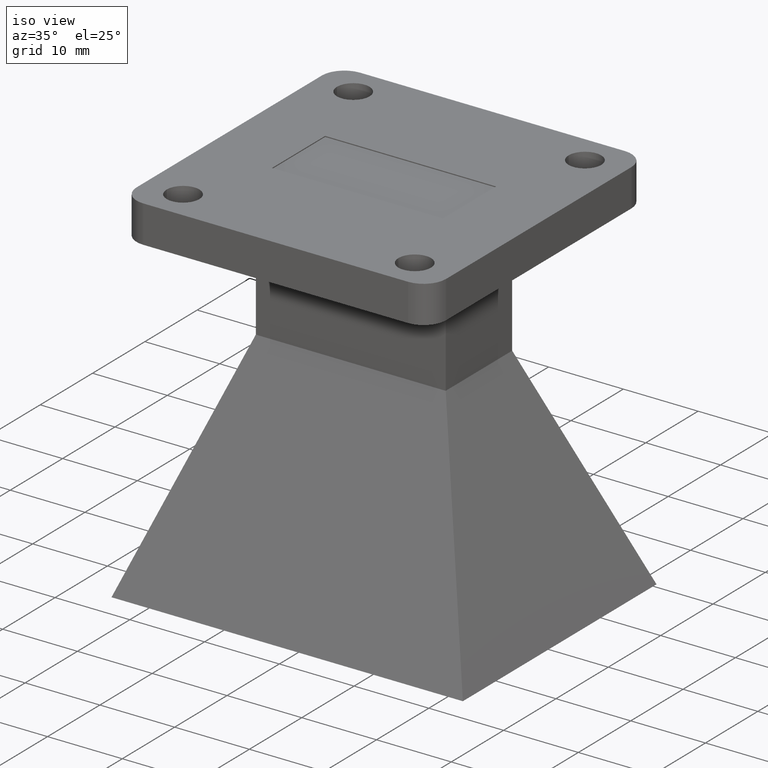
[diagram: clean part render]
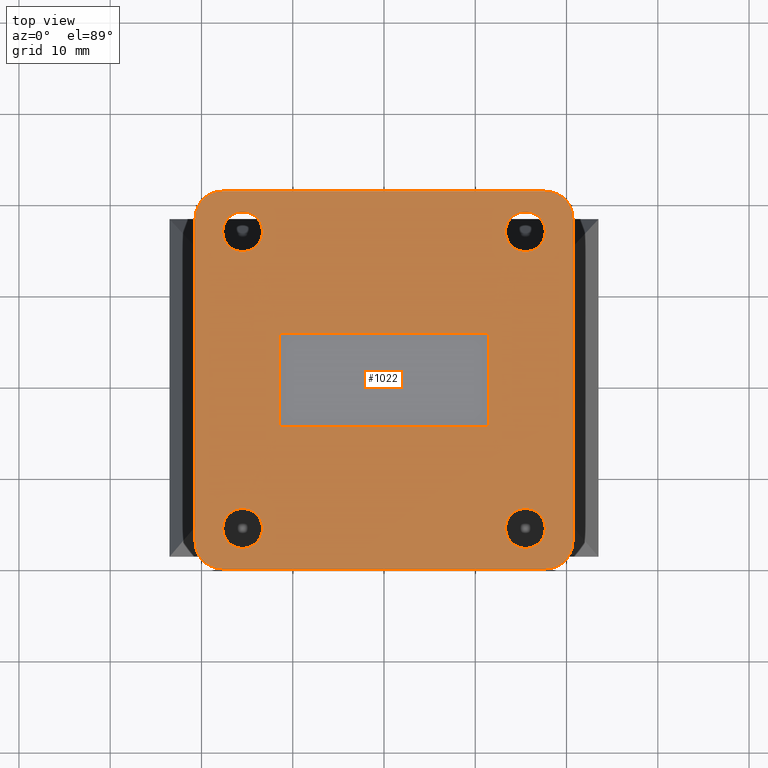
[diagram: tour spotlight — one face highlighted and labeled with its STEP entity id]
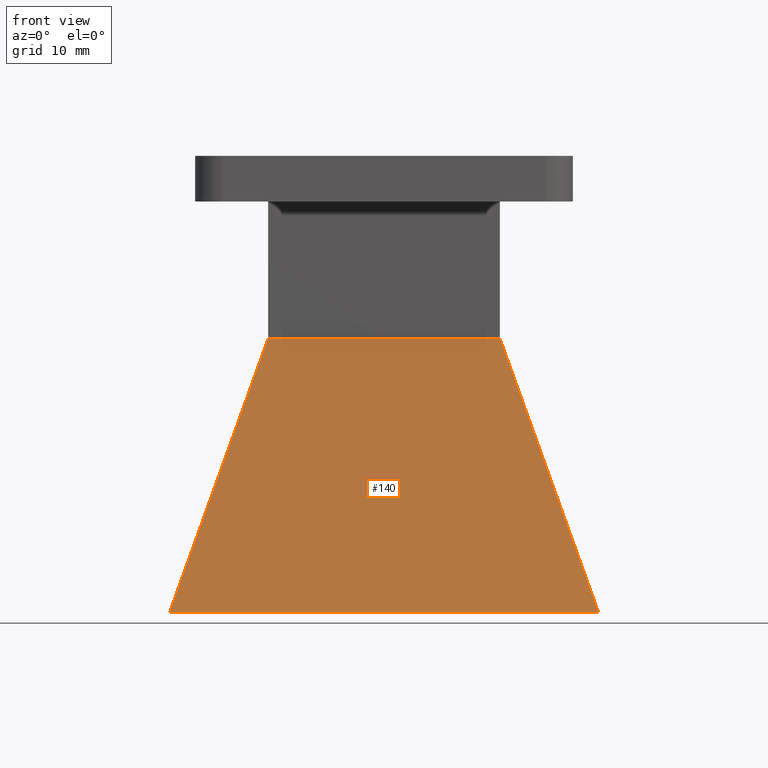
[diagram: tour spotlight — one face highlighted and labeled with its STEP entity id]
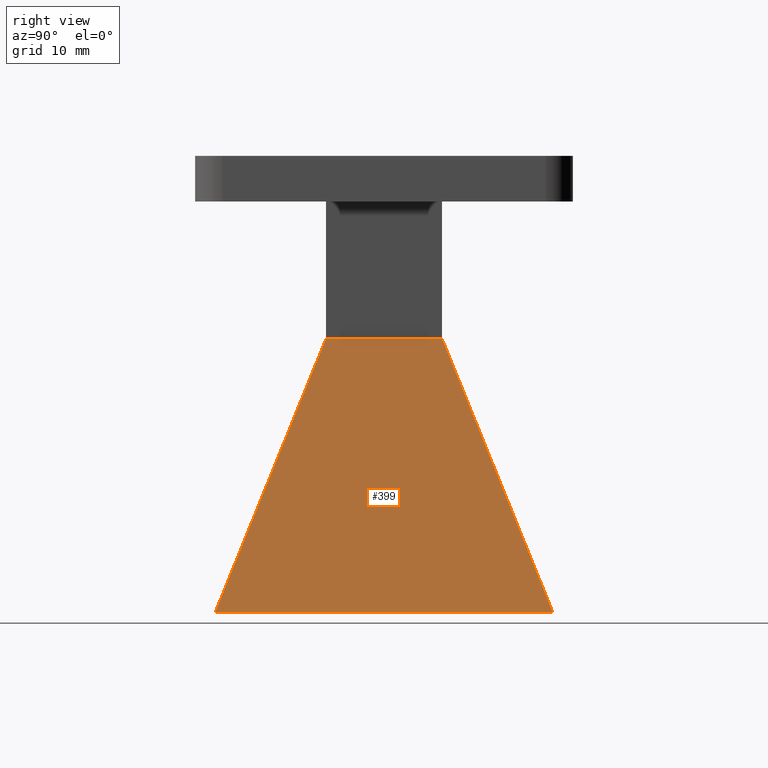
[diagram: tour spotlight — one face highlighted and labeled with its STEP entity id]
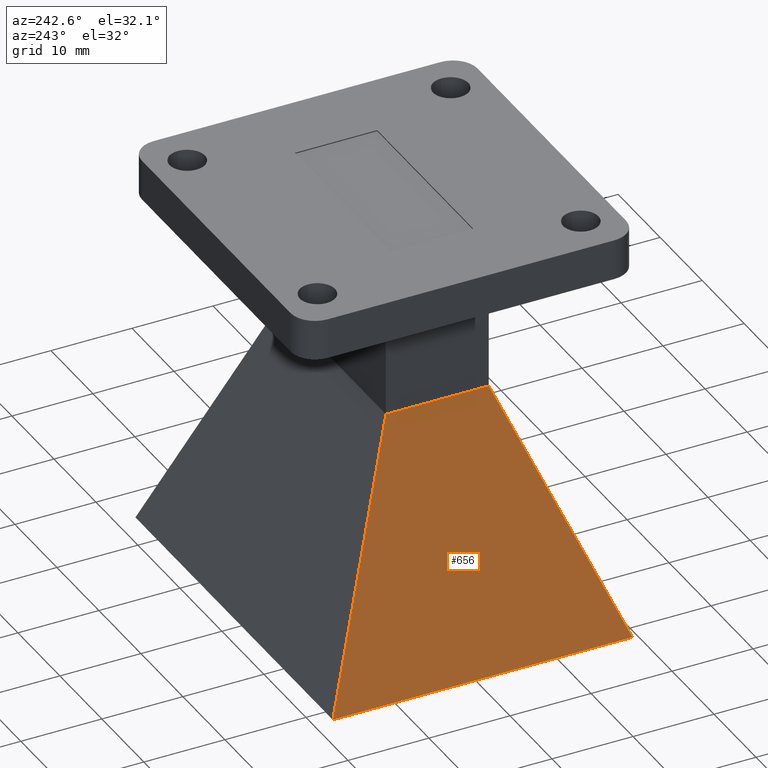
[diagram: tour spotlight — one face highlighted and labeled with its STEP entity id]
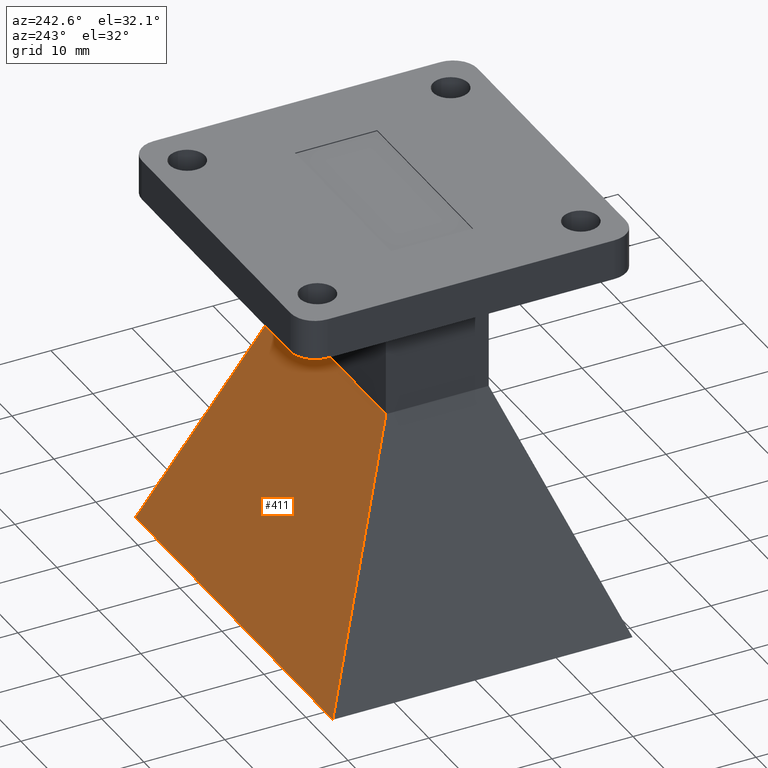
[diagram: tour spotlight — one face highlighted and labeled with its STEP entity id]
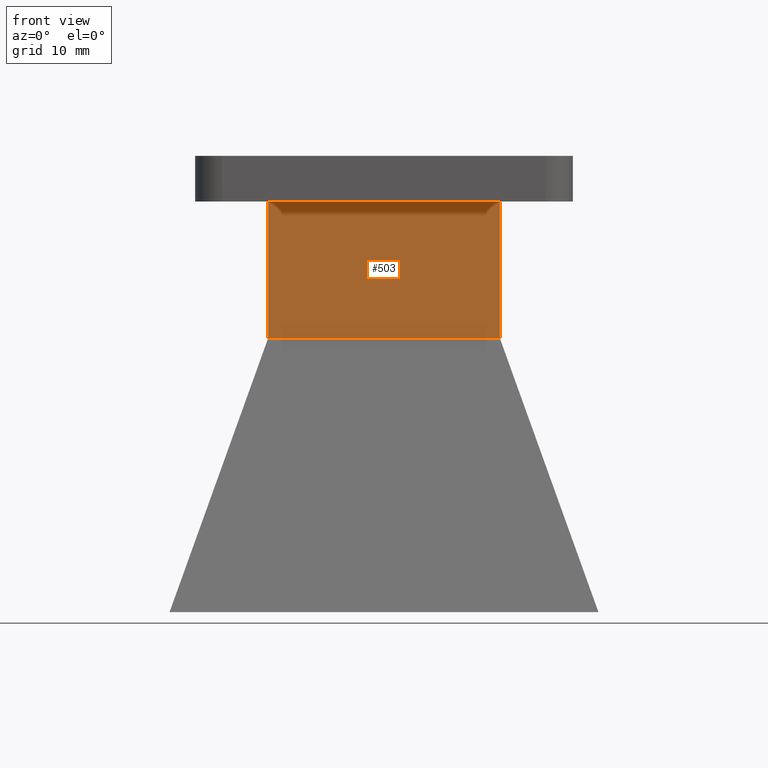
[diagram: tour spotlight — one face highlighted and labeled with its STEP entity id]
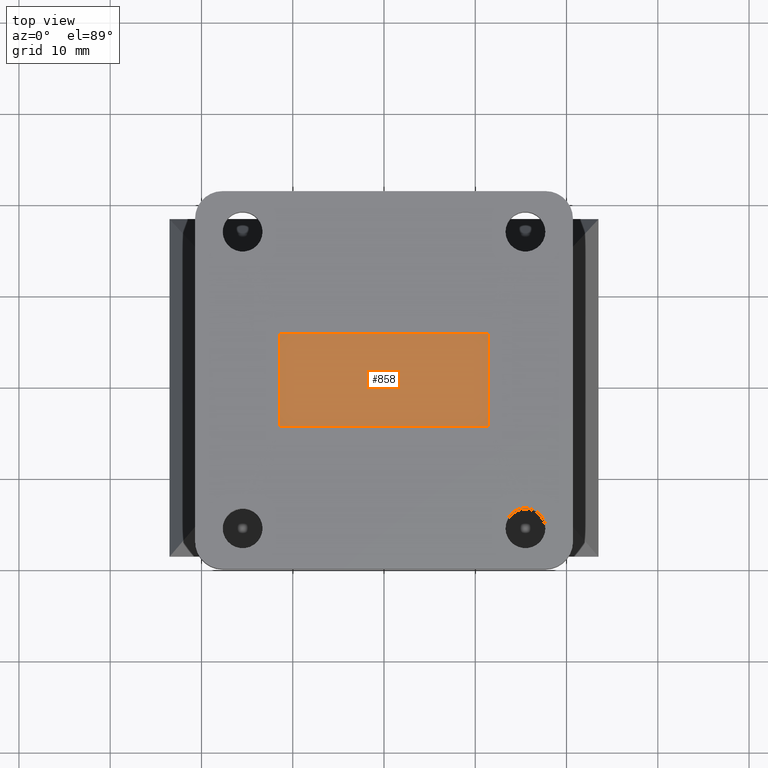
[diagram: tour spotlight — one face highlighted and labeled with its STEP entity id]
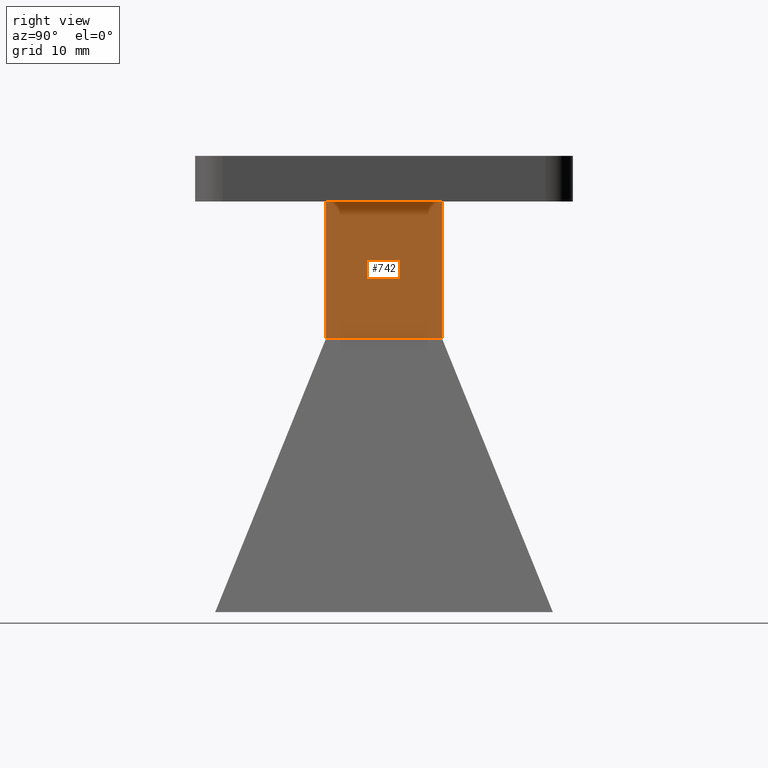
[diagram: tour spotlight — one face highlighted and labeled with its STEP entity id]
A machine part: a face-by-face anatomy tour. The part has 38 B-rep faces; the first image is the clean iso view, then the 8 largest visible faces are spotlighted one at a time (largest first), each with its STEP entity span.

Face 1 — top view, entity #1022. In plain terms, the highlighted planar face has unit normal (0, 0, 1).
Definition (entity closure, byte-faithful):
#3 = AXIS2_PLACEMENT_3D ( 'NONE', #416, #1051, #1064 ) ;
#8 = DIRECTION ( 'NONE',  ( -1.000000000000000000, -0.0000000000000000000, -0.0000000000000000000 ) ) ;
#9 = DIRECTION ( 'NONE',  ( 1.000000000000000000, 0.0000000000000000000, 0.0000000000000000000 ) ) ;
#13 = LINE ( 'NONE', #368, #430 ) ;
#22 = CARTESIAN_POINT ( 'NONE',  ( -0.6968897637795273800, -0.8149999999999999500, 0.0000000000000000000 ) ) ;
#27 = CIRCLE ( 'NONE', #929, 0.1181102362204724100 ) ;
#32 = DIRECTION ( 'NONE',  ( 1.000000000000000000, 0.0000000000000000000, 0.0000000000000000000 ) ) ;
#33 = ORIENTED_EDGE ( 'NONE', *, *, #1110, .T. ) ;
#34 = PLANE ( 'NONE',  #1174 ) ;
#41 = AXIS2_PLACEMENT_3D ( 'NONE', #105, #551, #804 ) ;
#49 = VERTEX_POINT ( 'NONE', #359 ) ;
#54 = DIRECTION ( 'NONE',  ( 1.000000000000000000, 0.0000000000000000000, 0.0000000000000000000 ) ) ;
#64 = DIRECTION ( 'NONE',  ( -0.0000000000000000000, -0.0000000000000000000, 1.000000000000000000 ) ) ;
#66 = CARTESIAN_POINT ( 'NONE',  ( 0.8150000000000000600, 0.6968897637795274900, 0.0000000000000000000 ) ) ;
#69 = DIRECTION ( 'NONE',  ( 0.0000000000000000000, 1.000000000000000000, 0.0000000000000000000 ) ) ;
#72 = LINE ( 'NONE', #990, #1019 ) ;
#74 = EDGE_CURVE ( 'NONE', #924, #1143, #27, .T. ) ;
#79 = DIRECTION ( 'NONE',  ( -1.000000000000000000, 0.0000000000000000000, 0.0000000000000000000 ) ) ;
#82 = EDGE_CURVE ( 'NONE', #261, #421, #13, .T. ) ;
#92 = DIRECTION ( 'NONE',  ( 1.000000000000000000, 0.0000000000000000000, 0.0000000000000000000 ) ) ;
#104 = AXIS2_PLACEMENT_3D ( 'NONE', #1134, #124, #32 ) ;
#105 = CARTESIAN_POINT ( 'NONE',  ( 0.6100000000000002100, 0.6400000000000002400, -1.016334378612393900E-017 ) ) ;
#124 = DIRECTION ( 'NONE',  ( -0.0000000000000000000, -0.0000000000000000000, 1.000000000000000000 ) ) ;
#126 = CARTESIAN_POINT ( 'NONE',  ( 0.5240600000000001900, -0.6399999999999996800, -1.016334378612393900E-017 ) ) ;
#127 = ORIENTED_EDGE ( 'NONE', *, *, #82, .F. ) ;
#129 = ORIENTED_EDGE ( 'NONE', *, *, #74, .T. ) ;
#133 = AXIS2_PLACEMENT_3D ( 'NONE', #800, #1076, #92 ) ;
#139 = EDGE_CURVE ( 'NONE', #421, #1021, #72, .T. ) ;
#141 = EDGE_LOOP ( 'NONE', ( #830, #127, #238, #1023 ) ) ;
#142 = ORIENTED_EDGE ( 'NONE', *, *, #696, .T. ) ;
#144 = VERTEX_POINT ( 'NONE', #1100 ) ;
#152 = AXIS2_PLACEMENT_3D ( 'NONE', #1172, #288, #9 ) ;
#169 = CARTESIAN_POINT ( 'NONE',  ( 0.6959400000000002300, -0.6399999999999996800, -1.016334378612393900E-017 ) ) ;
#172 = DIRECTION ( 'NONE',  ( 0.0000000000000000000, 1.000000000000000000, 0.0000000000000000000 ) ) ;
#192 = ORIENTED_EDGE ( 'NONE', *, *, #314, .F. ) ;
#196 = CARTESIAN_POINT ( 'NONE',  ( 0.6968897637795276000, 0.6968897637795274900, 0.0000000000000000000 ) ) ;
#211 = AXIS2_PLACEMENT_3D ( 'NONE', #196, #1115, #564 ) ;
#231 = EDGE_CURVE ( 'NONE', #591, #1101, #1065, .T. ) ;
#233 = LINE ( 'NONE', #22, #584 ) ;
#237 = CARTESIAN_POINT ( 'NONE',  ( -0.6099999999999997600, 0.6400000000000001200, -1.016334378612393900E-017 ) ) ;
#238 = ORIENTED_EDGE ( 'NONE', *, *, #850, .F. ) ;
#252 = VERTEX_POINT ( 'NONE', #644 ) ;
#261 = VERTEX_POINT ( 'NONE', #1012 ) ;
#262 = VERTEX_POINT ( 'NONE', #908 ) ;
#266 = EDGE_CURVE ( 'NONE', #431, #252, #233, .T. ) ;
#279 = ORIENTED_EDGE ( 'NONE', *, *, #544, .T. ) ;
#288 = DIRECTION ( 'NONE',  ( -0.0000000000000000000, -0.0000000000000000000, 1.000000000000000000 ) ) ;
#306 = ORIENTED_EDGE ( 'NONE', *, *, #231, .T. ) ;
#313 = CIRCLE ( 'NONE', #1008, 0.08594000000000001600 ) ;
#314 = EDGE_CURVE ( 'NONE', #458, #790, #972, .T. ) ;
#315 = FACE_OUTER_BOUND ( 'NONE', #639, .T. ) ;
#316 = CIRCLE ( 'NONE', #1073, 0.08594000000000001600 ) ;
#328 = CARTESIAN_POINT ( 'NONE',  ( -0.6968897637795273800, -0.8149999999999999500, 0.0000000000000000000 ) ) ;
#332 = CIRCLE ( 'NONE', #152, 0.08594000000000001600 ) ;
#340 = CARTESIAN_POINT ( 'NONE',  ( 0.6100000000000002100, -0.6399999999999996800, -1.016334378612393900E-017 ) ) ;
#344 = EDGE_CURVE ( 'NONE', #1143, #602, #855, .T. ) ;
#346 = LINE ( 'NONE', #405, #552 ) ;
#359 = CARTESIAN_POINT ( 'NONE',  ( 0.6959400000000002300, 0.6400000000000002400, -1.016334378612393900E-017 ) ) ;
#368 = CARTESIAN_POINT ( 'NONE',  ( -0.4499999999999999000, -0.2000000000000000100, 0.0000000000000000000 ) ) ;
#373 = VECTOR ( 'NONE', #69, 39.37007874015748100 ) ;
#386 = DIRECTION ( 'NONE',  ( 1.000000000000000000, 0.0000000000000000000, 0.0000000000000000000 ) ) ;
#395 = CARTESIAN_POINT ( 'NONE',  ( -0.5240599999999997500, 0.6400000000000001200, -1.016334378612393900E-017 ) ) ;
#405 = CARTESIAN_POINT ( 'NONE',  ( -0.4499999999999999000, 0.2000000000000000100, 0.0000000000000000000 ) ) ;
#407 = VERTEX_POINT ( 'NONE', #576 ) ;
#416 = CARTESIAN_POINT ( 'NONE',  ( -0.6099999999999997600, -0.6399999999999999000, -1.016334378612393900E-017 ) ) ;
#417 = EDGE_CURVE ( 'NONE', #907, #144, #1096, .T. ) ;
#421 = VERTEX_POINT ( 'NONE', #860 ) ;
#422 = CARTESIAN_POINT ( 'NONE',  ( -0.8149999999999997200, 0.6968897637795274900, 0.0000000000000000000 ) ) ;
#423 = DIRECTION ( 'NONE',  ( 1.000000000000000000, 0.0000000000000000000, 0.0000000000000000000 ) ) ;
#427 = EDGE_CURVE ( 'NONE', #790, #458, #1163, .T. ) ;
#430 = VECTOR ( 'NONE', #1089, 39.37007874015748100 ) ;
#431 = VERTEX_POINT ( 'NONE', #328 ) ;
#438 = FACE_BOUND ( 'NONE', #693, .T. ) ;
#440 = CIRCLE ( 'NONE', #1014, 0.08594000000000001600 ) ;
#458 = VERTEX_POINT ( 'NONE', #1047 ) ;
#465 = LINE ( 'NONE', #1088, #713 ) ;
#467 = EDGE_CURVE ( 'NONE', #624, #956, #316, .T. ) ;
#472 = ORIENTED_EDGE ( 'NONE', *, *, #1142, .T. ) ;
#474 = CARTESIAN_POINT ( 'NONE',  ( -0.6968897637795273800, 0.8149999999999999500, 0.0000000000000000000 ) ) ;
#484 = EDGE_CURVE ( 'NONE', #49, #262, #440, .T. ) ;
#494 = FACE_BOUND ( 'NONE', #715, .T. ) ;
#511 = DIRECTION ( 'NONE',  ( 1.000000000000000000, 0.0000000000000000000, 0.0000000000000000000 ) ) ;
#513 = CARTESIAN_POINT ( 'NONE',  ( 0.6100000000000002100, 0.6400000000000002400, -1.016334378612393900E-017 ) ) ;
#516 = CARTESIAN_POINT ( 'NONE',  ( 0.8150000000000000600, -0.6968897637795274900, 0.0000000000000000000 ) ) ;
#521 = EDGE_LOOP ( 'NONE', ( #1086, #694 ) ) ;
#534 = CARTESIAN_POINT ( 'NONE',  ( -0.6968897637795273800, -0.6968897637795274900, 0.0000000000000000000 ) ) ;
#540 = ORIENTED_EDGE ( 'NONE', *, *, #417, .F. ) ;
#544 = EDGE_CURVE ( 'NONE', #602, #431, #1037, .T. ) ;
#551 = DIRECTION ( 'NONE',  ( -0.0000000000000000000, -0.0000000000000000000, 1.000000000000000000 ) ) ;
#552 = VECTOR ( 'NONE', #583, 39.37007874015748100 ) ;
#556 = ORIENTED_EDGE ( 'NONE', *, *, #657, .F. ) ;
#558 = ORIENTED_EDGE ( 'NONE', *, *, #427, .F. ) ;
#564 = DIRECTION ( 'NONE',  ( -1.000000000000000000, 0.0000000000000000000, 0.0000000000000000000 ) ) ;
#566 = LINE ( 'NONE', #807, #985 ) ;
#576 = CARTESIAN_POINT ( 'NONE',  ( 0.8150000000000000600, -0.6968897637795274900, 0.0000000000000000000 ) ) ;
#583 = DIRECTION ( 'NONE',  ( -1.000000000000000000, -0.0000000000000000000, -0.0000000000000000000 ) ) ;
#584 = VECTOR ( 'NONE', #386, 39.37007874015748100 ) ;
#590 = DIRECTION ( 'NONE',  ( -0.0000000000000000000, -1.000000000000000000, -0.0000000000000000000 ) ) ;
#591 = VERTEX_POINT ( 'NONE', #66 ) ;
#593 = CARTESIAN_POINT ( 'NONE',  ( 0.6968897637795276000, -0.6968897637795274900, 0.0000000000000000000 ) ) ;
#602 = VERTEX_POINT ( 'NONE', #695 ) ;
#608 = FACE_BOUND ( 'NONE', #141, .T. ) ;
#611 = AXIS2_PLACEMENT_3D ( 'NONE', #237, #64, #946 ) ;
#615 = DIRECTION ( 'NONE',  ( -1.000000000000000000, 0.0000000000000000000, 0.0000000000000000000 ) ) ;
#624 = VERTEX_POINT ( 'NONE', #169 ) ;
#634 = DIRECTION ( 'NONE',  ( 0.0000000000000000000, 0.0000000000000000000, 1.000000000000000000 ) ) ;
#639 = EDGE_LOOP ( 'NONE', ( #472, #33, #306, #142, #129, #1156, #279, #708 ) ) ;
#644 = CARTESIAN_POINT ( 'NONE',  ( 0.6968897637795276000, -0.8149999999999999500, 0.0000000000000000000 ) ) ;
#657 = EDGE_CURVE ( 'NONE', #262, #49, #1151, .T. ) ;
#670 = AXIS2_PLACEMENT_3D ( 'NONE', #534, #1160, #615 ) ;
#673 = CARTESIAN_POINT ( 'NONE',  ( 0.4500000000000000700, 0.2000000000000000400, 0.0000000000000000000 ) ) ;
#676 = DIRECTION ( 'NONE',  ( 0.0000000000000000000, 0.0000000000000000000, 1.000000000000000000 ) ) ;
#692 = CARTESIAN_POINT ( 'NONE',  ( 0.6100000000000002100, -0.6399999999999996800, -1.016334378612393900E-017 ) ) ;
#693 = EDGE_LOOP ( 'NONE', ( #761, #556 ) ) ;
#694 = ORIENTED_EDGE ( 'NONE', *, *, #1133, .F. ) ;
#695 = CARTESIAN_POINT ( 'NONE',  ( -0.8149999999999997200, -0.6968897637795274900, 0.0000000000000000000 ) ) ;
#696 = EDGE_CURVE ( 'NONE', #1101, #924, #566, .T. ) ;
#708 = ORIENTED_EDGE ( 'NONE', *, *, #266, .T. ) ;
#712 = EDGE_CURVE ( 'NONE', #144, #907, #332, .T. ) ;
#713 = VECTOR ( 'NONE', #826, 39.37007874015748100 ) ;
#715 = EDGE_LOOP ( 'NONE', ( #192, #558 ) ) ;
#761 = ORIENTED_EDGE ( 'NONE', *, *, #484, .F. ) ;
#763 = DIRECTION ( 'NONE',  ( 1.000000000000000000, 0.0000000000000000000, -0.0000000000000000000 ) ) ;
#790 = VERTEX_POINT ( 'NONE', #1004 ) ;
#800 = CARTESIAN_POINT ( 'NONE',  ( 0.6968897637795276000, -0.6968897637795274900, 0.0000000000000000000 ) ) ;
#804 = DIRECTION ( 'NONE',  ( 1.000000000000000000, 0.0000000000000000000, 0.0000000000000000000 ) ) ;
#807 = CARTESIAN_POINT ( 'NONE',  ( -0.6968897637795273800, 0.8149999999999999500, 0.0000000000000000000 ) ) ;
#826 = DIRECTION ( 'NONE',  ( -0.0000000000000000000, -1.000000000000000000, -0.0000000000000000000 ) ) ;
#830 = ORIENTED_EDGE ( 'NONE', *, *, #139, .F. ) ;
#850 = EDGE_CURVE ( 'NONE', #910, #261, #465, .T. ) ;
#855 = LINE ( 'NONE', #918, #1124 ) ;
#860 = CARTESIAN_POINT ( 'NONE',  ( 0.4500000000000000700, -0.2000000000000000100, 0.0000000000000000000 ) ) ;
#893 = CARTESIAN_POINT ( 'NONE',  ( -0.6968897637795273800, 0.6968897637795274900, 0.0000000000000000000 ) ) ;
#894 = FACE_BOUND ( 'NONE', #521, .T. ) ;
#907 = VERTEX_POINT ( 'NONE', #395 ) ;
#908 = CARTESIAN_POINT ( 'NONE',  ( 0.5240600000000001900, 0.6400000000000002400, -1.016334378612393900E-017 ) ) ;
#910 = VERTEX_POINT ( 'NONE', #922 ) ;
#915 = LINE ( 'NONE', #516, #373 ) ;
#918 = CARTESIAN_POINT ( 'NONE',  ( -0.8149999999999997200, -0.6968897637795274900, 0.0000000000000000000 ) ) ;
#922 = CARTESIAN_POINT ( 'NONE',  ( -0.4499999999999999000, 0.2000000000000000100, 0.0000000000000000000 ) ) ;
#924 = VERTEX_POINT ( 'NONE', #474 ) ;
#929 = AXIS2_PLACEMENT_3D ( 'NONE', #893, #634, #79 ) ;
#946 = DIRECTION ( 'NONE',  ( 1.000000000000000000, 0.0000000000000000000, 0.0000000000000000000 ) ) ;
#948 = CARTESIAN_POINT ( 'NONE',  ( 0.6968897637795276000, 0.8149999999999999500, 0.0000000000000000000 ) ) ;
#951 = FACE_BOUND ( 'NONE', #1039, .T. ) ;
#952 = DIRECTION ( 'NONE',  ( -0.0000000000000000000, -0.0000000000000000000, 1.000000000000000000 ) ) ;
#954 = DIRECTION ( 'NONE',  ( -0.0000000000000000000, -0.0000000000000000000, 1.000000000000000000 ) ) ;
#956 = VERTEX_POINT ( 'NONE', #126 ) ;
#972 = CIRCLE ( 'NONE', #104, 0.08594000000000001600 ) ;
#985 = VECTOR ( 'NONE', #8, 39.37007874015748100 ) ;
#990 = CARTESIAN_POINT ( 'NONE',  ( 0.4500000000000000700, -0.2000000000000000100, 0.0000000000000000000 ) ) ;
#1001 = CIRCLE ( 'NONE', #133, 0.1181102362204724100 ) ;
#1004 = CARTESIAN_POINT ( 'NONE',  ( -0.6959399999999997800, -0.6399999999999999000, -1.016334378612393900E-017 ) ) ;
#1008 = AXIS2_PLACEMENT_3D ( 'NONE', #340, #954, #511 ) ;
#1012 = CARTESIAN_POINT ( 'NONE',  ( -0.4499999999999999000, -0.2000000000000000100, 0.0000000000000000000 ) ) ;
#1014 = AXIS2_PLACEMENT_3D ( 'NONE', #513, #952, #423 ) ;
#1019 = VECTOR ( 'NONE', #172, 39.37007874015748100 ) ;
#1021 = VERTEX_POINT ( 'NONE', #673 ) ;
#1022 = ADVANCED_FACE ( 'NONE', ( #951, #438, #494, #894, #608, #315 ), #34, .T. ) ;
#1023 = ORIENTED_EDGE ( 'NONE', *, *, #1033, .F. ) ;
#1033 = EDGE_CURVE ( 'NONE', #1021, #910, #346, .T. ) ;
#1037 = CIRCLE ( 'NONE', #670, 0.1181102362204724100 ) ;
#1039 = EDGE_LOOP ( 'NONE', ( #540, #1043 ) ) ;
#1043 = ORIENTED_EDGE ( 'NONE', *, *, #712, .F. ) ;
#1047 = CARTESIAN_POINT ( 'NONE',  ( -0.5240599999999997500, -0.6399999999999999000, -1.016334378612393900E-017 ) ) ;
#1051 = DIRECTION ( 'NONE',  ( -0.0000000000000000000, -0.0000000000000000000, 1.000000000000000000 ) ) ;
#1057 = DIRECTION ( 'NONE',  ( -0.0000000000000000000, -0.0000000000000000000, 1.000000000000000000 ) ) ;
#1064 = DIRECTION ( 'NONE',  ( 1.000000000000000000, 0.0000000000000000000, 0.0000000000000000000 ) ) ;
#1065 = CIRCLE ( 'NONE', #211, 0.1181102362204724100 ) ;
#1073 = AXIS2_PLACEMENT_3D ( 'NONE', #692, #1057, #54 ) ;
#1076 = DIRECTION ( 'NONE',  ( 0.0000000000000000000, 0.0000000000000000000, 1.000000000000000000 ) ) ;
#1086 = ORIENTED_EDGE ( 'NONE', *, *, #467, .F. ) ;
#1088 = CARTESIAN_POINT ( 'NONE',  ( -0.4499999999999999000, -0.2000000000000000100, 0.0000000000000000000 ) ) ;
#1089 = DIRECTION ( 'NONE',  ( 1.000000000000000000, 0.0000000000000000000, 0.0000000000000000000 ) ) ;
#1096 = CIRCLE ( 'NONE', #611, 0.08594000000000001600 ) ;
#1100 = CARTESIAN_POINT ( 'NONE',  ( -0.6959399999999997800, 0.6400000000000001200, -1.016334378612393900E-017 ) ) ;
#1101 = VERTEX_POINT ( 'NONE', #948 ) ;
#1110 = EDGE_CURVE ( 'NONE', #407, #591, #915, .T. ) ;
#1115 = DIRECTION ( 'NONE',  ( 0.0000000000000000000, 0.0000000000000000000, 1.000000000000000000 ) ) ;
#1124 = VECTOR ( 'NONE', #590, 39.37007874015748100 ) ;
#1133 = EDGE_CURVE ( 'NONE', #956, #624, #313, .T. ) ;
#1134 = CARTESIAN_POINT ( 'NONE',  ( -0.6099999999999997600, -0.6399999999999999000, -1.016334378612393900E-017 ) ) ;
#1142 = EDGE_CURVE ( 'NONE', #252, #407, #1001, .T. ) ;
#1143 = VERTEX_POINT ( 'NONE', #422 ) ;
#1151 = CIRCLE ( 'NONE', #41, 0.08594000000000001600 ) ;
#1156 = ORIENTED_EDGE ( 'NONE', *, *, #344, .T. ) ;
#1160 = DIRECTION ( 'NONE',  ( 0.0000000000000000000, 0.0000000000000000000, 1.000000000000000000 ) ) ;
#1163 = CIRCLE ( 'NONE', #3, 0.08594000000000001600 ) ;
#1172 = CARTESIAN_POINT ( 'NONE',  ( -0.6099999999999997600, 0.6400000000000001200, -1.016334378612393900E-017 ) ) ;
#1174 = AXIS2_PLACEMENT_3D ( 'NONE', #593, #676, #763 ) ;

Face 2 — front view, entity #140. In plain terms, the highlighted planar face has unit normal (-0, 0.9269, -0.3754).
Definition (entity closure, byte-faithful):
#16 = AXIS2_PLACEMENT_3D ( 'NONE', #269, #984, #640 ) ;
#17 = DIRECTION ( 'NONE',  ( 1.000000000000000000, 0.0000000000000000000, 0.0000000000000000000 ) ) ;
#25 = LINE ( 'NONE', #493, #1161 ) ;
#95 = VERTEX_POINT ( 'NONE', #98 ) ;
#98 = CARTESIAN_POINT ( 'NONE',  ( -0.4999999999999998300, -0.2500000000000000600, -0.7874015748031497600 ) ) ;
#140 = ADVANCED_FACE ( 'NONE', ( #507 ), #548, .F. ) ;
#156 = VERTEX_POINT ( 'NONE', #448 ) ;
#167 = EDGE_CURVE ( 'NONE', #1126, #1112, #276, .T. ) ;
#184 = CARTESIAN_POINT ( 'NONE',  ( 0.9251968503937011400, -0.7283464566929134200, -1.968503937007874100 ) ) ;
#190 = EDGE_LOOP ( 'NONE', ( #1080, #921, #861, #865 ) ) ;
#260 = CARTESIAN_POINT ( 'NONE',  ( 0.4999999999999998300, -0.2500000000000000600, -0.7874015748031496500 ) ) ;
#269 = CARTESIAN_POINT ( 'NONE',  ( -8.738450157423253300E-018, 0.05918913923264160900, -0.02397160138921985300 ) ) ;
#276 = LINE ( 'NONE', #184, #786 ) ;
#448 = CARTESIAN_POINT ( 'NONE',  ( 0.5000000000000000000, -0.2500000000000000600, -0.7874015748031497600 ) ) ;
#455 = VECTOR ( 'NONE', #976, 39.37007874015748100 ) ;
#482 = LINE ( 'NONE', #260, #455 ) ;
#493 = CARTESIAN_POINT ( 'NONE',  ( -0.4999999999999998300, -0.2500000000000000600, -0.7874015748031496500 ) ) ;
#507 = FACE_OUTER_BOUND ( 'NONE', #190, .T. ) ;
#548 = PLANE ( 'NONE',  #16 ) ;
#579 = DIRECTION ( 'NONE',  ( -0.3165179183200285700, -0.3560826581100320900, -0.8792164397778569100 ) ) ;
#607 = EDGE_CURVE ( 'NONE', #156, #1126, #482, .T. ) ;
#640 = DIRECTION ( 'NONE',  ( 0.0000000000000000000, 0.3753823677196394000, 0.9268700437521958400 ) ) ;
#658 = CARTESIAN_POINT ( 'NONE',  ( -0.4999999999999998300, -0.2500000000000000600, -0.7874015748031497600 ) ) ;
#684 = CARTESIAN_POINT ( 'NONE',  ( -0.9251968503937008100, -0.7283464566929136500, -1.968503937007874100 ) ) ;
#685 = CARTESIAN_POINT ( 'NONE',  ( 0.9251968503937011400, -0.7283464566929134200, -1.968503937007874100 ) ) ;
#786 = VECTOR ( 'NONE', #1079, 39.37007874015748100 ) ;
#861 = ORIENTED_EDGE ( 'NONE', *, *, #607, .F. ) ;
#863 = EDGE_CURVE ( 'NONE', #95, #156, #1122, .T. ) ;
#865 = ORIENTED_EDGE ( 'NONE', *, *, #863, .F. ) ;
#921 = ORIENTED_EDGE ( 'NONE', *, *, #167, .F. ) ;
#967 = EDGE_CURVE ( 'NONE', #95, #1112, #25, .T. ) ;
#976 = DIRECTION ( 'NONE',  ( 0.3165179183200287300, -0.3560826581100319200, -0.8792164397778569100 ) ) ;
#984 = DIRECTION ( 'NONE',  ( -1.368394233256667200E-016, 0.9268700437521958400, -0.3753823677196394000 ) ) ;
#1063 = VECTOR ( 'NONE', #17, 39.37007874015748100 ) ;
#1079 = DIRECTION ( 'NONE',  ( -1.000000000000000000, -1.476360405086644100E-016, 0.0000000000000000000 ) ) ;
#1080 = ORIENTED_EDGE ( 'NONE', *, *, #967, .T. ) ;
#1112 = VERTEX_POINT ( 'NONE', #684 ) ;
#1122 = LINE ( 'NONE', #658, #1063 ) ;
#1126 = VERTEX_POINT ( 'NONE', #685 ) ;
#1161 = VECTOR ( 'NONE', #579, 39.37007874015748100 ) ;

Face 3 — right view, entity #399. In plain terms, the highlighted planar face has unit normal (0.9409, -0, 0.3387).
Definition (entity closure, byte-faithful):
#18 = ORIENTED_EDGE ( 'NONE', *, *, #567, .F. ) ;
#24 = CARTESIAN_POINT ( 'NONE',  ( 0.4999999999999998300, 0.2500000000000000600, -0.7874015748031496500 ) ) ;
#106 = EDGE_LOOP ( 'NONE', ( #1116, #461, #510, #18 ) ) ;
#156 = VERTEX_POINT ( 'NONE', #448 ) ;
#168 = VECTOR ( 'NONE', #971, 39.37007874015748100 ) ;
#185 = FACE_OUTER_BOUND ( 'NONE', #106, .T. ) ;
#234 = DIRECTION ( 'NONE',  ( 0.3165179183200287300, 0.3560826581100319200, -0.8792164397778569100 ) ) ;
#246 = DIRECTION ( 'NONE',  ( 0.0000000000000000000, 1.000000000000000000, 0.0000000000000000000 ) ) ;
#260 = CARTESIAN_POINT ( 'NONE',  ( 0.4999999999999998300, -0.2500000000000000600, -0.7874015748031496500 ) ) ;
#366 = CARTESIAN_POINT ( 'NONE',  ( 0.9251968503937011400, 0.7283464566929134200, -1.968503937007874100 ) ) ;
#399 = ADVANCED_FACE ( 'NONE', ( #185 ), #957, .T. ) ;
#436 = CARTESIAN_POINT ( 'NONE',  ( 0.9251968503937011400, -0.7283464566929134200, -1.968503937007874100 ) ) ;
#448 = CARTESIAN_POINT ( 'NONE',  ( 0.5000000000000000000, -0.2500000000000000600, -0.7874015748031497600 ) ) ;
#455 = VECTOR ( 'NONE', #976, 39.37007874015748100 ) ;
#461 = ORIENTED_EDGE ( 'NONE', *, *, #1104, .T. ) ;
#482 = LINE ( 'NONE', #260, #455 ) ;
#499 = VERTEX_POINT ( 'NONE', #775 ) ;
#510 = ORIENTED_EDGE ( 'NONE', *, *, #941, .F. ) ;
#518 = CARTESIAN_POINT ( 'NONE',  ( 0.5000000000000001100, -0.2500000000000000600, -0.7874015748031497600 ) ) ;
#567 = EDGE_CURVE ( 'NONE', #156, #499, #1005, .T. ) ;
#607 = EDGE_CURVE ( 'NONE', #156, #1126, #482, .T. ) ;
#685 = CARTESIAN_POINT ( 'NONE',  ( 0.9251968503937011400, -0.7283464566929134200, -1.968503937007874100 ) ) ;
#688 = AXIS2_PLACEMENT_3D ( 'NONE', #779, #1148, #782 ) ;
#691 = VERTEX_POINT ( 'NONE', #366 ) ;
#775 = CARTESIAN_POINT ( 'NONE',  ( 0.5000000000000000000, 0.2500000000000000600, -0.7874015748031497600 ) ) ;
#779 = CARTESIAN_POINT ( 'NONE',  ( 0.1916921326760496200, 0.0000000000000000000, 0.06900916776337792700 ) ) ;
#782 = DIRECTION ( 'NONE',  ( 0.3387194682727418500, 0.0000000000000000000, -0.9408874118687266000 ) ) ;
#820 = LINE ( 'NONE', #436, #1175 ) ;
#836 = LINE ( 'NONE', #24, #933 ) ;
#933 = VECTOR ( 'NONE', #234, 39.37007874015748100 ) ;
#941 = EDGE_CURVE ( 'NONE', #499, #691, #836, .T. ) ;
#957 = PLANE ( 'NONE',  #688 ) ;
#971 = DIRECTION ( 'NONE',  ( 0.0000000000000000000, 1.000000000000000000, -0.0000000000000000000 ) ) ;
#976 = DIRECTION ( 'NONE',  ( 0.3165179183200287300, -0.3560826581100319200, -0.8792164397778569100 ) ) ;
#1005 = LINE ( 'NONE', #518, #168 ) ;
#1104 = EDGE_CURVE ( 'NONE', #1126, #691, #820, .T. ) ;
#1116 = ORIENTED_EDGE ( 'NONE', *, *, #607, .T. ) ;
#1126 = VERTEX_POINT ( 'NONE', #685 ) ;
#1148 = DIRECTION ( 'NONE',  ( 0.9408874118687267100, -0.0000000000000000000, 0.3387194682727419100 ) ) ;
#1175 = VECTOR ( 'NONE', #246, 39.37007874015748100 ) ;

Face 4 — auxiliary view, entity #656. In plain terms, the highlighted planar face has unit normal (0.9409, 0, -0.3387).
Definition (entity closure, byte-faithful):
#25 = LINE ( 'NONE', #493, #1161 ) ;
#29 = EDGE_CURVE ( 'NONE', #1112, #88, #875, .T. ) ;
#37 = EDGE_CURVE ( 'NONE', #146, #95, #303, .T. ) ;
#63 = ORIENTED_EDGE ( 'NONE', *, *, #914, .T. ) ;
#88 = VERTEX_POINT ( 'NONE', #183 ) ;
#90 = ORIENTED_EDGE ( 'NONE', *, *, #967, .F. ) ;
#95 = VERTEX_POINT ( 'NONE', #98 ) ;
#98 = CARTESIAN_POINT ( 'NONE',  ( -0.4999999999999998300, -0.2500000000000000600, -0.7874015748031497600 ) ) ;
#138 = FACE_OUTER_BOUND ( 'NONE', #722, .T. ) ;
#146 = VERTEX_POINT ( 'NONE', #449 ) ;
#181 = DIRECTION ( 'NONE',  ( 0.9408874118687268200, 0.0000000000000000000, -0.3387194682727417400 ) ) ;
#183 = CARTESIAN_POINT ( 'NONE',  ( -0.9251968503937008100, 0.7283464566929130900, -1.968503937007874100 ) ) ;
#193 = CARTESIAN_POINT ( 'NONE',  ( -0.1916921326760499300, 0.0000000000000000000, 0.06900916776337798200 ) ) ;
#275 = PLANE ( 'NONE',  #833 ) ;
#293 = DIRECTION ( 'NONE',  ( -0.3165179183200286200, 0.3560826581100318100, -0.8792164397778570200 ) ) ;
#303 = LINE ( 'NONE', #454, #1152 ) ;
#449 = CARTESIAN_POINT ( 'NONE',  ( -0.4999999999999998300, 0.2500000000000000600, -0.7874015748031497600 ) ) ;
#454 = CARTESIAN_POINT ( 'NONE',  ( -0.4999999999999998300, -0.2500000000000000600, -0.7874015748031497600 ) ) ;
#493 = CARTESIAN_POINT ( 'NONE',  ( -0.4999999999999998300, -0.2500000000000000600, -0.7874015748031496500 ) ) ;
#531 = CARTESIAN_POINT ( 'NONE',  ( -0.9251968503937008100, -0.7283464566929136500, -1.968503937007874100 ) ) ;
#579 = DIRECTION ( 'NONE',  ( -0.3165179183200285700, -0.3560826581100320900, -0.8792164397778569100 ) ) ;
#643 = DIRECTION ( 'NONE',  ( -0.3387194682727417400, 0.0000000000000000000, -0.9408874118687268200 ) ) ;
#656 = ADVANCED_FACE ( 'NONE', ( #138 ), #275, .F. ) ;
#668 = ORIENTED_EDGE ( 'NONE', *, *, #29, .F. ) ;
#684 = CARTESIAN_POINT ( 'NONE',  ( -0.9251968503937008100, -0.7283464566929136500, -1.968503937007874100 ) ) ;
#704 = ORIENTED_EDGE ( 'NONE', *, *, #37, .F. ) ;
#722 = EDGE_LOOP ( 'NONE', ( #63, #668, #90, #704 ) ) ;
#776 = VECTOR ( 'NONE', #805, 39.37007874015748100 ) ;
#793 = DIRECTION ( 'NONE',  ( -0.0000000000000000000, -1.000000000000000000, -0.0000000000000000000 ) ) ;
#805 = DIRECTION ( 'NONE',  ( 0.0000000000000000000, 1.000000000000000000, 0.0000000000000000000 ) ) ;
#817 = CARTESIAN_POINT ( 'NONE',  ( -0.4999999999999998300, 0.2500000000000000600, -0.7874015748031496500 ) ) ;
#833 = AXIS2_PLACEMENT_3D ( 'NONE', #193, #181, #643 ) ;
#875 = LINE ( 'NONE', #531, #776 ) ;
#914 = EDGE_CURVE ( 'NONE', #146, #88, #1091, .T. ) ;
#967 = EDGE_CURVE ( 'NONE', #95, #1112, #25, .T. ) ;
#1035 = VECTOR ( 'NONE', #293, 39.37007874015747400 ) ;
#1091 = LINE ( 'NONE', #817, #1035 ) ;
#1112 = VERTEX_POINT ( 'NONE', #684 ) ;
#1152 = VECTOR ( 'NONE', #793, 39.37007874015748100 ) ;
#1161 = VECTOR ( 'NONE', #579, 39.37007874015748100 ) ;

Face 5 — auxiliary view, entity #411. In plain terms, the highlighted planar face has unit normal (-0, 0.9269, 0.3754).
Definition (entity closure, byte-faithful):
#24 = CARTESIAN_POINT ( 'NONE',  ( 0.4999999999999998300, 0.2500000000000000600, -0.7874015748031496500 ) ) ;
#60 = ORIENTED_EDGE ( 'NONE', *, *, #914, .F. ) ;
#61 = EDGE_CURVE ( 'NONE', #691, #88, #898, .T. ) ;
#88 = VERTEX_POINT ( 'NONE', #183 ) ;
#146 = VERTEX_POINT ( 'NONE', #449 ) ;
#176 = DIRECTION ( 'NONE',  ( -1.000000000000000000, -1.476360405086644100E-016, 0.0000000000000000000 ) ) ;
#183 = CARTESIAN_POINT ( 'NONE',  ( -0.9251968503937008100, 0.7283464566929130900, -1.968503937007874100 ) ) ;
#234 = DIRECTION ( 'NONE',  ( 0.3165179183200287300, 0.3560826581100319200, -0.8792164397778569100 ) ) ;
#248 = FACE_OUTER_BOUND ( 'NONE', #635, .T. ) ;
#293 = DIRECTION ( 'NONE',  ( -0.3165179183200286200, 0.3560826581100318100, -0.8792164397778570200 ) ) ;
#329 = CARTESIAN_POINT ( 'NONE',  ( -0.4999999999999998300, 0.2500000000000000600, -0.7874015748031497600 ) ) ;
#336 = ORIENTED_EDGE ( 'NONE', *, *, #61, .T. ) ;
#366 = CARTESIAN_POINT ( 'NONE',  ( 0.9251968503937011400, 0.7283464566929134200, -1.968503937007874100 ) ) ;
#380 = ORIENTED_EDGE ( 'NONE', *, *, #997, .F. ) ;
#404 = VECTOR ( 'NONE', #176, 39.37007874015748100 ) ;
#411 = ADVANCED_FACE ( 'NONE', ( #248 ), #681, .T. ) ;
#449 = CARTESIAN_POINT ( 'NONE',  ( -0.4999999999999998300, 0.2500000000000000600, -0.7874015748031497600 ) ) ;
#499 = VERTEX_POINT ( 'NONE', #775 ) ;
#606 = DIRECTION ( 'NONE',  ( 0.0000000000000000000, -0.3753823677196392300, 0.9268700437521958400 ) ) ;
#635 = EDGE_LOOP ( 'NONE', ( #801, #336, #60, #380 ) ) ;
#675 = VECTOR ( 'NONE', #1044, 39.37007874015748100 ) ;
#678 = CARTESIAN_POINT ( 'NONE',  ( 8.738450157423234800E-018, -0.05918913923264148400, -0.02397160138921979400 ) ) ;
#681 = PLANE ( 'NONE',  #884 ) ;
#691 = VERTEX_POINT ( 'NONE', #366 ) ;
#775 = CARTESIAN_POINT ( 'NONE',  ( 0.5000000000000000000, 0.2500000000000000600, -0.7874015748031497600 ) ) ;
#784 = LINE ( 'NONE', #329, #675 ) ;
#798 = CARTESIAN_POINT ( 'NONE',  ( 0.9251968503937011400, 0.7283464566929134200, -1.968503937007874100 ) ) ;
#801 = ORIENTED_EDGE ( 'NONE', *, *, #941, .T. ) ;
#817 = CARTESIAN_POINT ( 'NONE',  ( -0.4999999999999998300, 0.2500000000000000600, -0.7874015748031496500 ) ) ;
#836 = LINE ( 'NONE', #24, #933 ) ;
#884 = AXIS2_PLACEMENT_3D ( 'NONE', #678, #1141, #606 ) ;
#898 = LINE ( 'NONE', #798, #404 ) ;
#914 = EDGE_CURVE ( 'NONE', #146, #88, #1091, .T. ) ;
#933 = VECTOR ( 'NONE', #234, 39.37007874015748100 ) ;
#941 = EDGE_CURVE ( 'NONE', #499, #691, #836, .T. ) ;
#997 = EDGE_CURVE ( 'NONE', #499, #146, #784, .T. ) ;
#1035 = VECTOR ( 'NONE', #293, 39.37007874015747400 ) ;
#1044 = DIRECTION ( 'NONE',  ( -1.000000000000000000, -0.0000000000000000000, -0.0000000000000000000 ) ) ;
#1091 = LINE ( 'NONE', #817, #1035 ) ;
#1141 = DIRECTION ( 'NONE',  ( -1.368394233256667400E-016, 0.9268700437521959500, 0.3753823677196392900 ) ) ;

Face 6 — front view, entity #503. In plain terms, the highlighted planar face has unit normal (-0, 1, 0).
Definition (entity closure, byte-faithful):
#6 = EDGE_CURVE ( 'NONE', #121, #649, #537, .T. ) ;
#17 = DIRECTION ( 'NONE',  ( 1.000000000000000000, 0.0000000000000000000, 0.0000000000000000000 ) ) ;
#23 = VECTOR ( 'NONE', #614, 39.37007874015748100 ) ;
#68 = LINE ( 'NONE', #457, #871 ) ;
#87 = AXIS2_PLACEMENT_3D ( 'NONE', #432, #165, #700 ) ;
#95 = VERTEX_POINT ( 'NONE', #98 ) ;
#98 = CARTESIAN_POINT ( 'NONE',  ( -0.4999999999999998300, -0.2500000000000000600, -0.7874015748031497600 ) ) ;
#121 = VERTEX_POINT ( 'NONE', #213 ) ;
#131 = ORIENTED_EDGE ( 'NONE', *, *, #764, .T. ) ;
#156 = VERTEX_POINT ( 'NONE', #448 ) ;
#165 = DIRECTION ( 'NONE',  ( -0.0000000000000000000, 1.000000000000000000, 0.0000000000000000000 ) ) ;
#180 = CARTESIAN_POINT ( 'NONE',  ( -0.4999999999999998300, -0.2500000000000000600, -0.1968503937007874100 ) ) ;
#213 = CARTESIAN_POINT ( 'NONE',  ( 0.5000000000000001100, -0.2500000000000000600, -0.1968503937007874100 ) ) ;
#236 = ORIENTED_EDGE ( 'NONE', *, *, #863, .T. ) ;
#270 = LINE ( 'NONE', #964, #23 ) ;
#432 = CARTESIAN_POINT ( 'NONE',  ( -0.4999999999999998300, -0.2500000000000000600, -2.692837138356194400 ) ) ;
#448 = CARTESIAN_POINT ( 'NONE',  ( 0.5000000000000000000, -0.2500000000000000600, -0.7874015748031497600 ) ) ;
#457 = CARTESIAN_POINT ( 'NONE',  ( 0.5000000000000001100, -0.2500000000000000600, -2.692837138356194400 ) ) ;
#503 = ADVANCED_FACE ( 'NONE', ( #610 ), #869, .F. ) ;
#537 = LINE ( 'NONE', #180, #955 ) ;
#610 = FACE_OUTER_BOUND ( 'NONE', #1066, .T. ) ;
#614 = DIRECTION ( 'NONE',  ( -0.0000000000000000000, -0.0000000000000000000, 1.000000000000000000 ) ) ;
#618 = CARTESIAN_POINT ( 'NONE',  ( -0.4999999999999998300, -0.2500000000000000000, -0.1968503937007874100 ) ) ;
#622 = ORIENTED_EDGE ( 'NONE', *, *, #1055, .F. ) ;
#642 = ORIENTED_EDGE ( 'NONE', *, *, #6, .T. ) ;
#649 = VERTEX_POINT ( 'NONE', #618 ) ;
#658 = CARTESIAN_POINT ( 'NONE',  ( -0.4999999999999998300, -0.2500000000000000600, -0.7874015748031497600 ) ) ;
#700 = DIRECTION ( 'NONE',  ( 0.0000000000000000000, -0.0000000000000000000, 1.000000000000000000 ) ) ;
#707 = DIRECTION ( 'NONE',  ( -1.000000000000000000, -0.0000000000000000000, -0.0000000000000000000 ) ) ;
#764 = EDGE_CURVE ( 'NONE', #156, #121, #68, .T. ) ;
#802 = DIRECTION ( 'NONE',  ( -0.0000000000000000000, -0.0000000000000000000, 1.000000000000000000 ) ) ;
#863 = EDGE_CURVE ( 'NONE', #95, #156, #1122, .T. ) ;
#869 = PLANE ( 'NONE',  #87 ) ;
#871 = VECTOR ( 'NONE', #802, 39.37007874015748100 ) ;
#955 = VECTOR ( 'NONE', #707, 39.37007874015748100 ) ;
#964 = CARTESIAN_POINT ( 'NONE',  ( -0.4999999999999998300, -0.2500000000000000600, -2.692837138356194400 ) ) ;
#1055 = EDGE_CURVE ( 'NONE', #95, #649, #270, .T. ) ;
#1063 = VECTOR ( 'NONE', #17, 39.37007874015748100 ) ;
#1066 = EDGE_LOOP ( 'NONE', ( #622, #236, #131, #642 ) ) ;
#1122 = LINE ( 'NONE', #658, #1063 ) ;

Face 7 — top view, entity #858. In plain terms, the highlighted planar face has unit normal (0, 0, -1).
Definition (entity closure, byte-faithful):
#7 = ORIENTED_EDGE ( 'NONE', *, *, #645, .T. ) ;
#11 = LINE ( 'NONE', #441, #934 ) ;
#118 = VERTEX_POINT ( 'NONE', #200 ) ;
#173 = VERTEX_POINT ( 'NONE', #714 ) ;
#179 = CARTESIAN_POINT ( 'NONE',  ( 0.4500000000000000700, -0.2000000000000000100, -0.005000000000000000100 ) ) ;
#200 = CARTESIAN_POINT ( 'NONE',  ( -0.4499999999999999000, 0.2000000000000000100, -0.005000000000000000100 ) ) ;
#312 = CARTESIAN_POINT ( 'NONE',  ( -0.4499999999999999000, -0.2000000000000000100, -0.005000000000000000100 ) ) ;
#384 = CARTESIAN_POINT ( 'NONE',  ( -0.4499999999999999000, -0.2000000000000000100, -0.005000000000000000100 ) ) ;
#398 = DIRECTION ( 'NONE',  ( -0.0000000000000000000, -1.000000000000000000, -0.0000000000000000000 ) ) ;
#429 = CARTESIAN_POINT ( 'NONE',  ( 0.4500000000000000700, -0.2000000000000000100, -0.005000000000000000100 ) ) ;
#441 = CARTESIAN_POINT ( 'NONE',  ( -0.4499999999999999000, 0.2000000000000000100, -0.005000000000000000100 ) ) ;
#452 = VECTOR ( 'NONE', #1059, 39.37007874015748100 ) ;
#456 = ORIENTED_EDGE ( 'NONE', *, *, #1118, .T. ) ;
#481 = AXIS2_PLACEMENT_3D ( 'NONE', #559, #912, #1117 ) ;
#483 = PLANE ( 'NONE',  #481 ) ;
#527 = DIRECTION ( 'NONE',  ( -1.000000000000000000, -0.0000000000000000000, -0.0000000000000000000 ) ) ;
#532 = LINE ( 'NONE', #384, #968 ) ;
#555 = CARTESIAN_POINT ( 'NONE',  ( -0.4499999999999999000, -0.2000000000000000100, -0.005000000000000000100 ) ) ;
#559 = CARTESIAN_POINT ( 'NONE',  ( 0.0000000000000000000, 0.0000000000000000000, -0.005000000000000000100 ) ) ;
#645 = EDGE_CURVE ( 'NONE', #173, #118, #11, .T. ) ;
#655 = ORIENTED_EDGE ( 'NONE', *, *, #973, .T. ) ;
#679 = VERTEX_POINT ( 'NONE', #555 ) ;
#683 = EDGE_LOOP ( 'NONE', ( #456, #7, #841, #655 ) ) ;
#687 = VECTOR ( 'NONE', #1135, 39.37007874015748100 ) ;
#697 = LINE ( 'NONE', #312, #687 ) ;
#714 = CARTESIAN_POINT ( 'NONE',  ( 0.4500000000000000700, 0.2000000000000000100, -0.005000000000000000100 ) ) ;
#743 = VERTEX_POINT ( 'NONE', #179 ) ;
#819 = EDGE_CURVE ( 'NONE', #118, #679, #532, .T. ) ;
#841 = ORIENTED_EDGE ( 'NONE', *, *, #819, .T. ) ;
#858 = ADVANCED_FACE ( 'NONE', ( #1016 ), #483, .F. ) ;
#912 = DIRECTION ( 'NONE',  ( 0.0000000000000000000, 0.0000000000000000000, -1.000000000000000000 ) ) ;
#934 = VECTOR ( 'NONE', #527, 39.37007874015748100 ) ;
#968 = VECTOR ( 'NONE', #398, 39.37007874015748100 ) ;
#973 = EDGE_CURVE ( 'NONE', #679, #743, #697, .T. ) ;
#1016 = FACE_OUTER_BOUND ( 'NONE', #683, .T. ) ;
#1059 = DIRECTION ( 'NONE',  ( 0.0000000000000000000, 1.000000000000000000, 0.0000000000000000000 ) ) ;
#1075 = LINE ( 'NONE', #429, #452 ) ;
#1117 = DIRECTION ( 'NONE',  ( -1.000000000000000000, 0.0000000000000000000, -0.0000000000000000000 ) ) ;
#1118 = EDGE_CURVE ( 'NONE', #743, #173, #1075, .T. ) ;
#1135 = DIRECTION ( 'NONE',  ( 1.000000000000000000, 0.0000000000000000000, 0.0000000000000000000 ) ) ;

Face 8 — right view, entity #742. In plain terms, the highlighted planar face has unit normal (-1, 0, 0).
Definition (entity closure, byte-faithful):
#68 = LINE ( 'NONE', #457, #871 ) ;
#89 = PLANE ( 'NONE',  #204 ) ;
#94 = DIRECTION ( 'NONE',  ( 0.0000000000000000000, 0.0000000000000000000, 1.000000000000000000 ) ) ;
#121 = VERTEX_POINT ( 'NONE', #213 ) ;
#130 = EDGE_CURVE ( 'NONE', #939, #121, #333, .T. ) ;
#156 = VERTEX_POINT ( 'NONE', #448 ) ;
#168 = VECTOR ( 'NONE', #971, 39.37007874015748100 ) ;
#194 = ORIENTED_EDGE ( 'NONE', *, *, #130, .T. ) ;
#204 = AXIS2_PLACEMENT_3D ( 'NONE', #904, #711, #94 ) ;
#213 = CARTESIAN_POINT ( 'NONE',  ( 0.5000000000000001100, -0.2500000000000000600, -0.1968503937007874100 ) ) ;
#292 = ORIENTED_EDGE ( 'NONE', *, *, #355, .T. ) ;
#333 = LINE ( 'NONE', #745, #738 ) ;
#355 = EDGE_CURVE ( 'NONE', #499, #939, #428, .T. ) ;
#412 = DIRECTION ( 'NONE',  ( -0.0000000000000000000, -0.0000000000000000000, 1.000000000000000000 ) ) ;
#428 = LINE ( 'NONE', #846, #582 ) ;
#448 = CARTESIAN_POINT ( 'NONE',  ( 0.5000000000000000000, -0.2500000000000000600, -0.7874015748031497600 ) ) ;
#457 = CARTESIAN_POINT ( 'NONE',  ( 0.5000000000000001100, -0.2500000000000000600, -2.692837138356194400 ) ) ;
#499 = VERTEX_POINT ( 'NONE', #775 ) ;
#518 = CARTESIAN_POINT ( 'NONE',  ( 0.5000000000000001100, -0.2500000000000000600, -0.7874015748031497600 ) ) ;
#533 = FACE_OUTER_BOUND ( 'NONE', #1145, .T. ) ;
#567 = EDGE_CURVE ( 'NONE', #156, #499, #1005, .T. ) ;
#582 = VECTOR ( 'NONE', #412, 39.37007874015748100 ) ;
#627 = ORIENTED_EDGE ( 'NONE', *, *, #764, .F. ) ;
#711 = DIRECTION ( 'NONE',  ( -1.000000000000000000, 0.0000000000000000000, 0.0000000000000000000 ) ) ;
#738 = VECTOR ( 'NONE', #1025, 39.37007874015748100 ) ;
#742 = ADVANCED_FACE ( 'NONE', ( #533 ), #89, .F. ) ;
#745 = CARTESIAN_POINT ( 'NONE',  ( 0.5000000000000001100, -0.2500000000000000600, -0.1968503937007874100 ) ) ;
#764 = EDGE_CURVE ( 'NONE', #156, #121, #68, .T. ) ;
#775 = CARTESIAN_POINT ( 'NONE',  ( 0.5000000000000000000, 0.2500000000000000600, -0.7874015748031497600 ) ) ;
#777 = ORIENTED_EDGE ( 'NONE', *, *, #567, .T. ) ;
#802 = DIRECTION ( 'NONE',  ( -0.0000000000000000000, -0.0000000000000000000, 1.000000000000000000 ) ) ;
#834 = CARTESIAN_POINT ( 'NONE',  ( 0.5000000000000001100, 0.2500000000000000600, -0.1968503937007874100 ) ) ;
#846 = CARTESIAN_POINT ( 'NONE',  ( 0.5000000000000001100, 0.2500000000000000600, -2.692837138356194400 ) ) ;
#871 = VECTOR ( 'NONE', #802, 39.37007874015748100 ) ;
#904 = CARTESIAN_POINT ( 'NONE',  ( 0.5000000000000001100, -0.2500000000000000600, -2.692837138356194400 ) ) ;
#939 = VERTEX_POINT ( 'NONE', #834 ) ;
#971 = DIRECTION ( 'NONE',  ( 0.0000000000000000000, 1.000000000000000000, -0.0000000000000000000 ) ) ;
#1005 = LINE ( 'NONE', #518, #168 ) ;
#1025 = DIRECTION ( 'NONE',  ( -0.0000000000000000000, -1.000000000000000000, -0.0000000000000000000 ) ) ;
#1145 = EDGE_LOOP ( 'NONE', ( #627, #777, #292, #194 ) ) ;